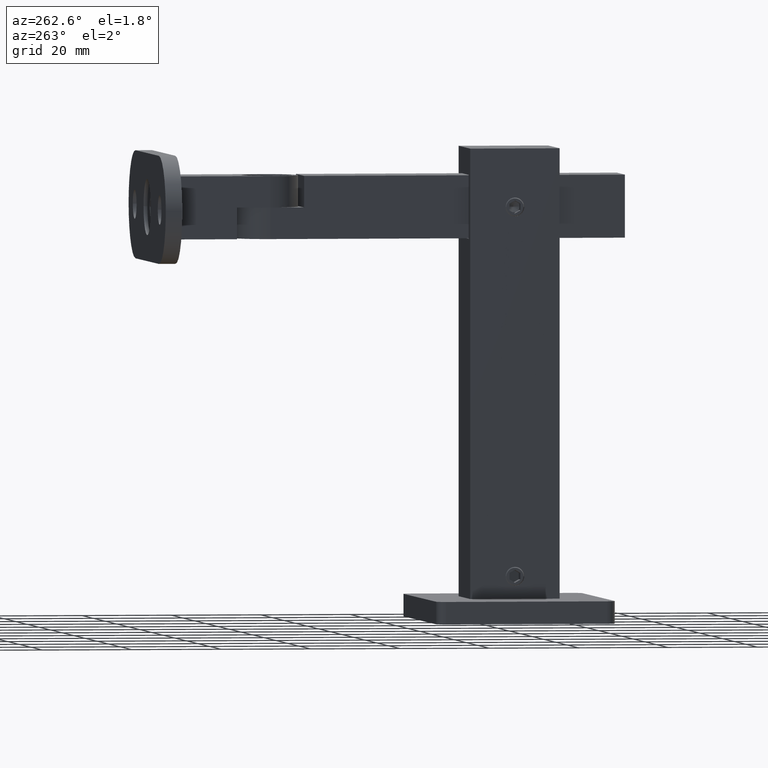
[diagram: clean part render]
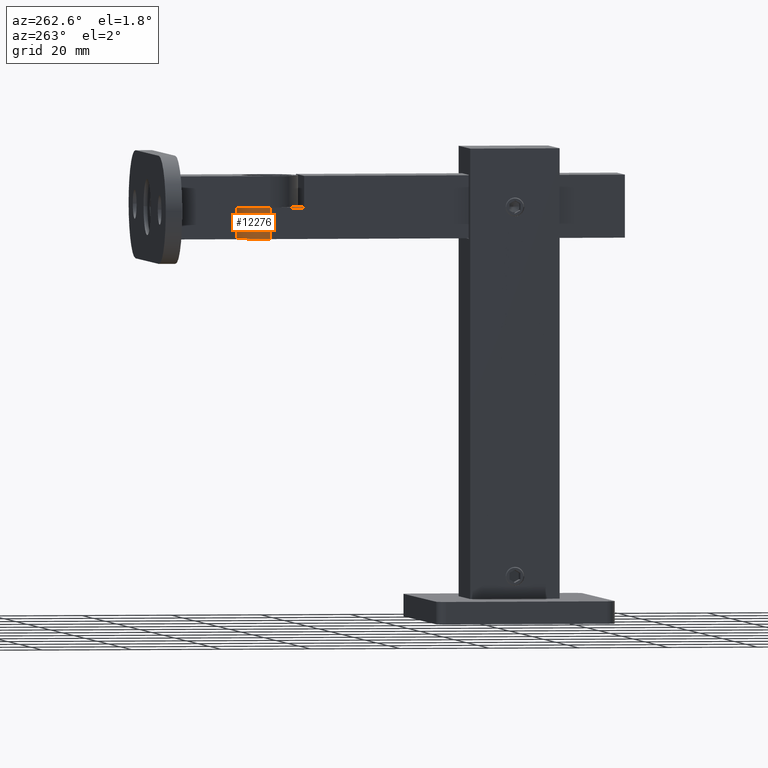
[diagram: same view with one face highlighted and labeled with its STEP entity id]
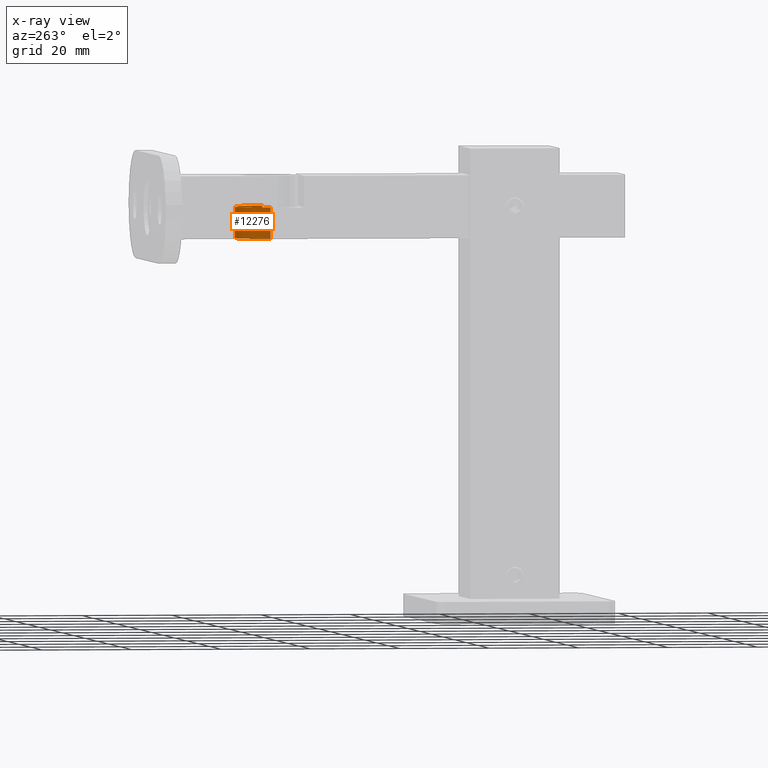
[diagram: x-ray of the same camera — body ghosted, the highlighted face saturated]
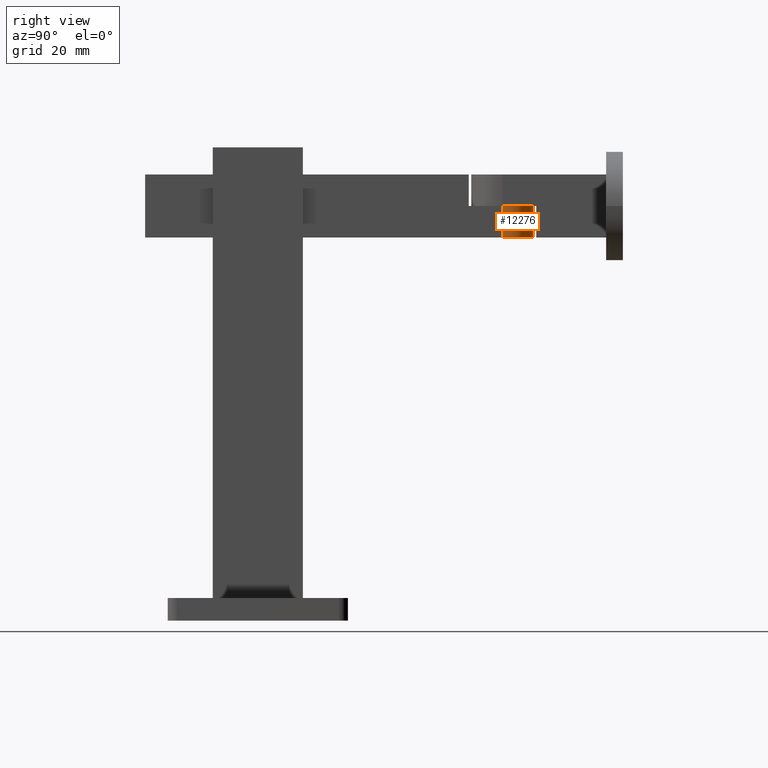
[diagram: same view with one face highlighted and labeled with its STEP entity id]
A machine part, auxiliary view. The second image highlights one B-rep face of the part: STEP entity #12276.
The next image is the same camera in x-ray: the body ghosted, the highlighted face saturated — about 0% of this face is hidden behind the body in this view.
A second angle (right view) of the same face is appended — the face is thin or edge-on in the first view.
In plain terms, the highlighted cylindrical surface (edge-blend (fillet) strip) has radius 7 mm, axis along (0, -0, 1).
Its self-contained STEP definition (entity closure, byte-faithful):
#507 = CARTESIAN_POINT ( 'NONE',  ( -7.000000000000000000, 79.29999999999999716, -6.999999999999999112 ) ) ;
#723 = FACE_OUTER_BOUND ( 'NONE', #19916, .T. ) ;
#821 = CARTESIAN_POINT ( 'NONE',  ( 1.734723475976807094E-15, 79.29999999999999716, -6.999999999999999112 ) ) ;
#1133 = VECTOR ( 'NONE', #11749, 1000.000000000000000 ) ;
#2481 = DIRECTION ( 'NONE',  ( 1.000000000000000000, -0.000000000000000000, -0.000000000000000000 ) ) ;
#2708 = CIRCLE ( 'NONE', #19574, 6.999999999999997335 ) ;
#2776 = VERTEX_POINT ( 'NONE', #821 ) ;
#3684 = CARTESIAN_POINT ( 'NONE',  ( 1.734723475976807094E-15, 79.29999999999999716, 0.000000000000000000 ) ) ;
#4662 = CIRCLE ( 'NONE', #27558, 6.999999999999992006 ) ;
#4793 = ORIENTED_EDGE ( 'NONE', *, *, #5016, .F. ) ;
#5016 = EDGE_CURVE ( 'NONE', #19400, #2776, #22843, .T. ) ;
#5274 = ORIENTED_EDGE ( 'NONE', *, *, #18444, .T. ) ;
#5437 = CARTESIAN_POINT ( 'NONE',  ( -7.000000000000000000, 79.29999999999999716, 0.000000000000000000 ) ) ;
#6031 = VERTEX_POINT ( 'NONE', #10541 ) ;
#9440 = DIRECTION ( 'NONE',  ( 0.000000000000000000, 0.000000000000000000, -1.000000000000000000 ) ) ;
#10541 = CARTESIAN_POINT ( 'NONE',  ( 2.025230650352836042E-15, 79.29999999999999716, 6.999999999999998224 ) ) ;
#10825 = LINE ( 'NONE', #26198, #1133 ) ;
#11749 = DIRECTION ( 'NONE',  ( 1.000000000000000000, -0.000000000000000000, -0.000000000000000000 ) ) ;
#12276 = ADVANCED_FACE ( 'NONE', ( #723 ), #23467, .T. ) ;
#12617 = ORIENTED_EDGE ( 'NONE', *, *, #21592, .F. ) ;
#13212 = CARTESIAN_POINT ( 'NONE',  ( -7.000000000000000000, 79.29999999999999716, 0.000000000000000000 ) ) ;
#13346 = CARTESIAN_POINT ( 'NONE',  ( -6.999999999999997335, 79.29999999999999716, 6.999999999999998224 ) ) ;
#14460 = VECTOR ( 'NONE', #15419, 1000.000000000000000 ) ;
#15419 = DIRECTION ( 'NONE',  ( 1.000000000000000000, -0.000000000000000000, -0.000000000000000000 ) ) ;
#16619 = VERTEX_POINT ( 'NONE', #13346 ) ;
#16636 = DIRECTION ( 'NONE',  ( 2.715020321271283238E-17, -1.000000000000000000, 0.000000000000000000 ) ) ;
#17250 = AXIS2_PLACEMENT_3D ( 'NONE', #13212, #2481, #26163 ) ;
#18442 = ORIENTED_EDGE ( 'NONE', *, *, #25195, .T. ) ;
#18444 = EDGE_CURVE ( 'NONE', #16619, #6031, #10825, .T. ) ;
#18520 = DIRECTION ( 'NONE',  ( -1.000000000000000000, -2.715020321271283238E-17, -0.000000000000000000 ) ) ;
#19400 = VERTEX_POINT ( 'NONE', #23932 ) ;
#19574 = AXIS2_PLACEMENT_3D ( 'NONE', #5437, #19950, #9440 ) ;
#19916 = EDGE_LOOP ( 'NONE', ( #5274, #18442, #4793, #12617 ) ) ;
#19950 = DIRECTION ( 'NONE',  ( -1.000000000000000000, -0.000000000000000000, -0.000000000000000000 ) ) ;
#21592 = EDGE_CURVE ( 'NONE', #16619, #19400, #2708, .T. ) ;
#22843 = LINE ( 'NONE', #507, #14460 ) ;
#23467 = CYLINDRICAL_SURFACE ( 'NONE', #17250, 6.999999999999997335 ) ;
#23932 = CARTESIAN_POINT ( 'NONE',  ( -7.000000000000000000, 79.29999999999999716, -6.999999999999999112 ) ) ;
#25195 = EDGE_CURVE ( 'NONE', #6031, #2776, #4662, .T. ) ;
#26163 = DIRECTION ( 'NONE',  ( 0.000000000000000000, 0.000000000000000000, -1.000000000000000000 ) ) ;
#26198 = CARTESIAN_POINT ( 'NONE',  ( -7.000000000000000000, 79.29999999999999716, 6.999999999999997335 ) ) ;
#27558 = AXIS2_PLACEMENT_3D ( 'NONE', #3684, #18520, #16636 ) ;